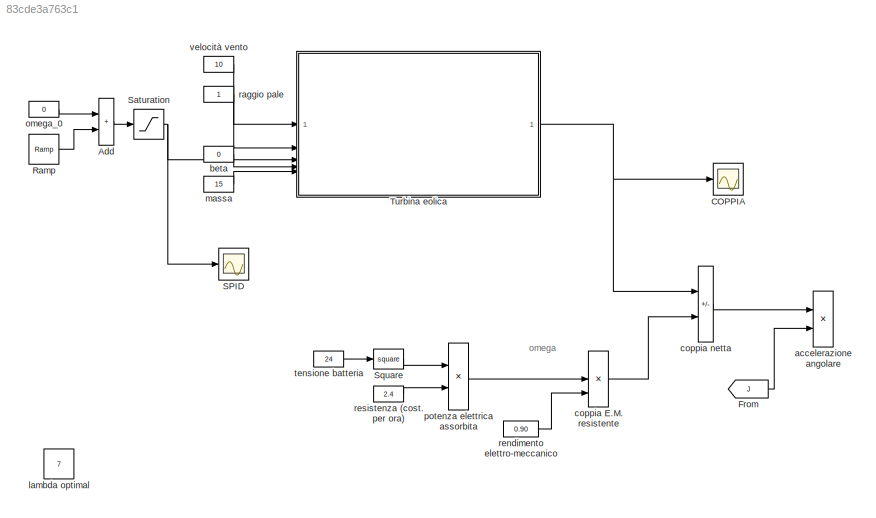
MODEL slx_83cde3a763c1
KIND model
CONFIG AbsTol = auto
CONFIG EnableMultiTasking = off
CONFIG FixedStep = auto
CONFIG MaxStep = auto
CONFIG MinStep = auto
CONFIG RelTol = 1e-3
CONFIG SampleTimeConstraint = Unconstrained
CONFIG SolverName = VariableStepAuto
CONFIG StartTime = 0.0
CONFIG StopTime = 20
BLOCK [Sum] Add
  IconShape = rectangular
BLOCK [Scope] COPPIA
  Floating = off
  NumInputPorts = 1
  ScopeSpecificationString = Simulink.scopes.TimeScopeBlockCfg('CurrentConfiguration', extmgr.ConfigurationSet(extmgr.Configuration('Core','General UI',true),extmgr.Configuration('Core','Source UI',true),extmgr.Configuration('Sources','WiredSimulink',true),extmgr.Configuration('Visuals','Time Domain',true,'SerializedDisplays',{struct('MinYLimReal','-484.26593','MaxYLimReal','860.04926','YLabelReal','','MinYLimMag',' 0.00000',...<+1765ch>
BLOCK [From] From
  Commented = on
  GotoTag = J
BLOCK [Reference] Ramp  REF=simulink/Sources/Ramp
  SourceBlock = simulink/Sources/Ramp
  SourceType = Ramp
BLOCK [Scope] SPID
  Floating = off
  NumInputPorts = 1
  ScopeSpecificationString = Simulink.scopes.TimeScopeBlockCfg('CurrentConfiguration', extmgr.ConfigurationSet(extmgr.Configuration('Core','General UI',true),extmgr.Configuration('Core','Source UI',true),extmgr.Configuration('Sources','WiredSimulink',true,'DataLoggingVariableName','ScopeData1'),extmgr.Configuration('Visuals','Time Domain',true,'SerializedDisplays',{struct('MinYLimReal','-21.375','MaxYLimReal','202.375','YLabe...<+1897ch>
BLOCK [Saturate] Saturation
  LowerLimit = 1
  UpperLimit = 180
BLOCK [Math] Square
  Commented = on
  Operator = square
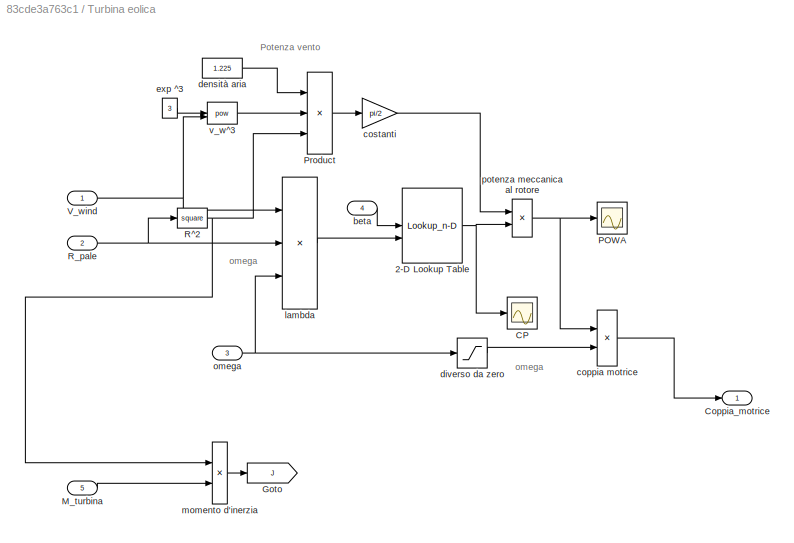
BLOCK [SubSystem] Turbina eolica
BLOCK [Lookup_n-D] Turbina eolica/2-D Lookup Table
  BreakpointsForDimension1 = [0, 3, 5, 10, 20, 90]
  BreakpointsForDimension2 = [0, 2, 4, 6, 8, 10, 12, 14, 15]
  InputPortMap = u0,u1
  InternalRulePriority = Speed
  RndMeth = Simplest
  Table = [0.0010, 0.0161, 0.1446, 0.3865, 0.5009, 0.4404, 0.2545, 0.0002, -0.1384; 0.0016, 0.0173, 0.1079, 0.2676, 0.3779, 0.4111, 0.3838, 0.3176, 0.2753; 0.0027, 0.0197, 0.1151, 0.2606, 0.3469, 0.3558, 0.3069, 0.2222, 0.1718; 0.0054, 0.0283, 0.1315, 0.2364, 0.2589, 0.2022, 0.0929, -0.0455, -0.1204; 0.0109, 0.0536, 0.1320, 0.1256, 0.0120, -0.1752, -0.4017, -0.6435, -0.7655; -0.01 * ones(1, 9)]
BLOCK [Scope] Turbina eolica/CP
  Floating = off
  NumInputPorts = 1
  ScopeSpecificationString = Simulink.scopes.TimeScopeBlockCfg('CurrentConfiguration', extmgr.ConfigurationSet(extmgr.Configuration('Core','General UI',true),extmgr.Configuration('Core','Source UI',true),extmgr.Configuration('Sources','WiredSimulink',true,'DataLoggingVariableName','ScopeData3'),extmgr.Configuration('Visuals','Time Domain',true,'SerializedDisplays',{struct('MinYLimReal','-0.68571','MaxYLimReal','0.62938','YLab...<+1791ch>
BLOCK [Outport] Turbina eolica/Coppia_motrice
BLOCK [Goto] Turbina eolica/Goto
  GotoTag = J
BLOCK [Inport] Turbina eolica/M_turbina
  Port = 5
BLOCK [Scope] Turbina eolica/POWA
  Floating = off
  NumInputPorts = 1
  ScopeSpecificationString = Simulink.scopes.TimeScopeBlockCfg('CurrentConfiguration', extmgr.ConfigurationSet(extmgr.Configuration('Core','General UI',true),extmgr.Configuration('Core','Source UI',true),extmgr.Configuration('Sources','WiredSimulink',true,'DataLoggingVariableName','ScopeData2'),extmgr.Configuration('Visuals','Time Domain',true,'SerializedDisplays',{struct('MinYLimReal','-77912.76196','MaxYLimReal','71512.9131...<+1831ch>
BLOCK [Product] Turbina eolica/Product
  Inputs = ***
BLOCK [Math] Turbina eolica/R^2
  Operator = square
BLOCK [Inport] Turbina eolica/R_pale
  Port = 2
BLOCK [Inport] Turbina eolica/V_wind
BLOCK [Inport] Turbina eolica/beta
  Port = 4
BLOCK [Product] Turbina eolica/coppia motrice
  Inputs = */
BLOCK [Gain] Turbina eolica/costanti
  Gain = pi/2
BLOCK [Constant] Turbina eolica/densità aria
  Value = 1.225
BLOCK [Saturate] Turbina eolica/diverso da zero
  LowerLimit = 0.1
  UpperLimit = 10e3
BLOCK [Constant] Turbina eolica/exp ^3
  Value = 3
BLOCK [Product] Turbina eolica/lambda
  Inputs = /**
BLOCK [Product] Turbina eolica/momento d'inerzia
BLOCK [Inport] Turbina eolica/omega
  Port = 3
BLOCK [Product] Turbina eolica/potenza meccanica al rotore
BLOCK [Math] Turbina eolica/v_w^3
  Operator = pow
BLOCK [Product] accelerazione angolare
  Commented = on
  Inputs = */
BLOCK [Constant] beta
  NameLocation = left
  Value = 0
BLOCK [Product] coppia E.M. resistente
  Commented = on
  Inputs = /*/
BLOCK [Sum] coppia netta
  Commented = on
  IconShape = rectangular
  Inputs = +-
BLOCK [Constant] lambda optimal
  Commented = on
  Value = 7
BLOCK [Constant] massa
  Value = 15
BLOCK [Constant] omega_0
  NameLocation = left
  Value = 0
BLOCK [Product] potenza elettrica assorbita
  Commented = on
  Inputs = */
  NameLocation = top
BLOCK [Constant] raggio pale
  NameLocation = left
BLOCK [Constant] rendimento elettro-meccanico
  Commented = on
  Value = 0.90
BLOCK [Constant] resistenza (cost. per ora)
  Commented = on
  Value = 2.4
BLOCK [Constant] tensione batteria
  Commented = on
  Value = 24
BLOCK [Constant] velocità vento
  NameLocation = left
  Value = 10
ANNOTATION (root): omega
ANNOTATION Turbina eolica: Potenza vento
ANNOTATION Turbina eolica: omega
LINE Add:1 -> Saturation:1
LINE From:1 -> accelerazione angolare:2
LINE Ramp:1 -> Add:2
NET Saturation:1 -> SPID:1, Turbina eolica:3
LINE Square:1 -> potenza elettrica assorbita:1
NET Turbina eolica/2-D Lookup Table:1 -> Turbina eolica/CP:1, Turbina eolica/potenza meccanica al rotore:2
LINE Turbina eolica/M_turbina:1 -> Turbina eolica/momento d'inerzia:2
LINE Turbina eolica/Product:1 -> Turbina eolica/costanti:1
NET Turbina eolica/R^2:1 -> Turbina eolica/Product:3, Turbina eolica/momento d'inerzia:1
NET Turbina eolica/R_pale:1 -> Turbina eolica/R^2:1, Turbina eolica/lambda:2
NET Turbina eolica/V_wind:1 -> Turbina eolica/lambda:1, Turbina eolica/v_w^3:2
LINE Turbina eolica/beta:1 -> Turbina eolica/2-D Lookup Table:1
LINE Turbina eolica/coppia motrice:1 -> Turbina eolica/Coppia_motrice:1
LINE Turbina eolica/costanti:1 -> Turbina eolica/potenza meccanica al rotore:1
LINE Turbina eolica/densità aria:1 -> Turbina eolica/Product:1
LINE Turbina eolica/diverso da zero:1 -> Turbina eolica/coppia motrice:2
LINE Turbina eolica/exp ^3:1 -> Turbina eolica/v_w^3:1
LINE Turbina eolica/lambda:1 -> Turbina eolica/2-D Lookup Table:2
LINE Turbina eolica/momento d'inerzia:1 -> Turbina eolica/Goto:1
NET Turbina eolica/omega:1 -> Turbina eolica/diverso da zero:1, Turbina eolica/lambda:3
NET Turbina eolica/potenza meccanica al rotore:1 -> Turbina eolica/POWA:1, Turbina eolica/coppia motrice:1
LINE Turbina eolica/v_w^3:1 -> Turbina eolica/Product:2
NET Turbina eolica:1 -> COPPIA:1, coppia netta:1
LINE beta:1 -> Turbina eolica:4
LINE coppia E.M. resistente:1 -> coppia netta:2
LINE coppia netta:1 -> accelerazione angolare:1
LINE massa:1 -> Turbina eolica:5
LINE omega_0:1 -> Add:1
LINE potenza elettrica assorbita:1 -> coppia E.M. resistente:2
LINE raggio pale:1 -> Turbina eolica:2
LINE rendimento elettro-meccanico:1 -> coppia E.M. resistente:3
LINE resistenza (cost. per ora):1 -> potenza elettrica assorbita:2
LINE tensione batteria:1 -> Square:1
LINE velocità vento:1 -> Turbina eolica:1
note: NET lines group one-source signal fan-out (src -> all destinations, sorted); 1:1 wires keep LINE
